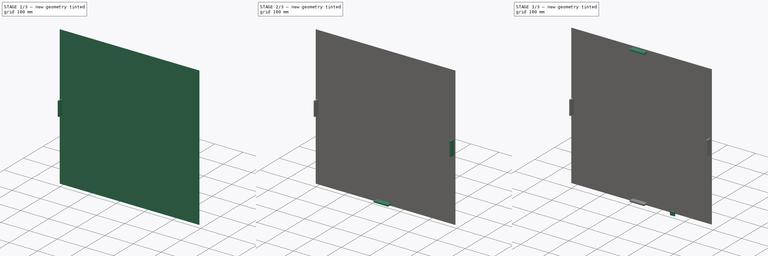
[diagram: build sequence overview — one tinted view per stage of 3, left to right]
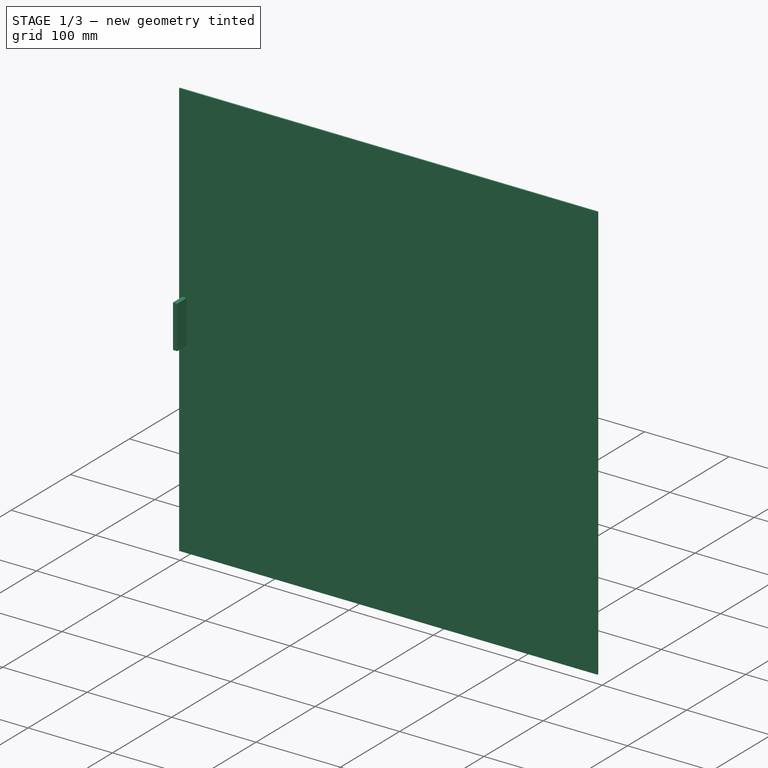
[diagram: stage 1 of 3 — iso view after this stage's code; geometry added in this stage tinted green]
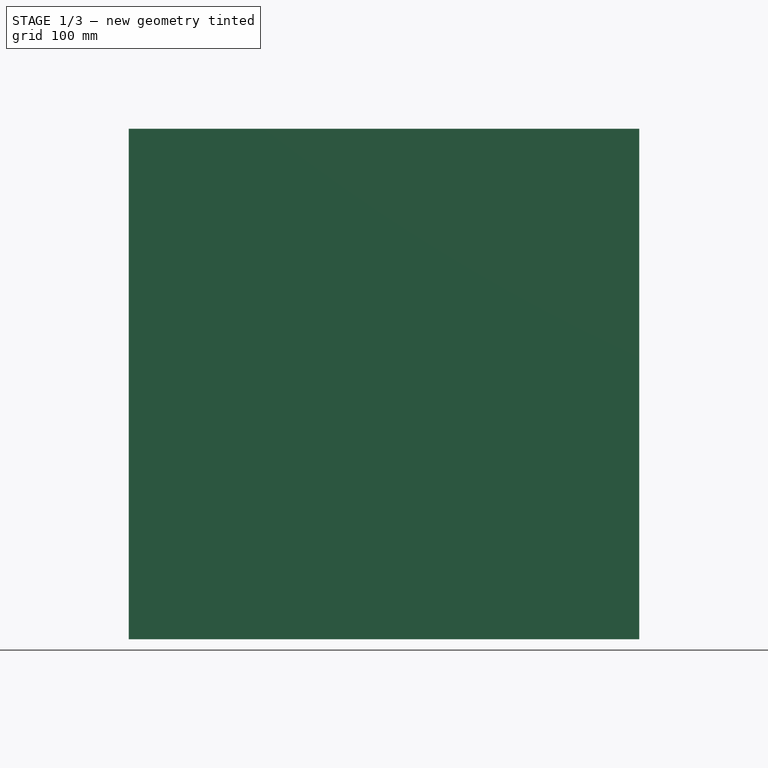
[diagram: stage 1 of 3 — front view after this stage's code; geometry added in this stage tinted green]
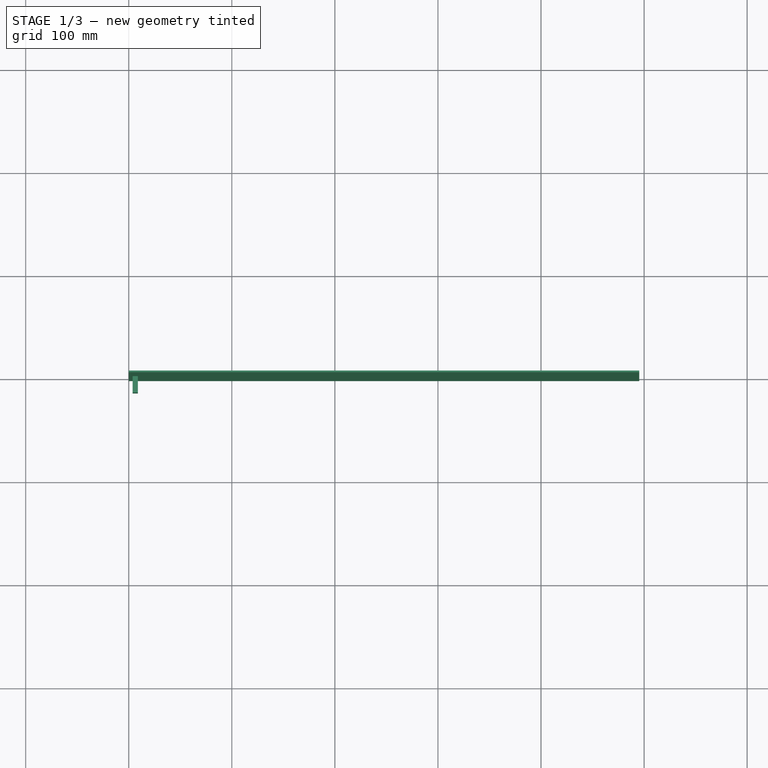
[diagram: stage 1 of 3 — top view after this stage's code; geometry added in this stage tinted green]
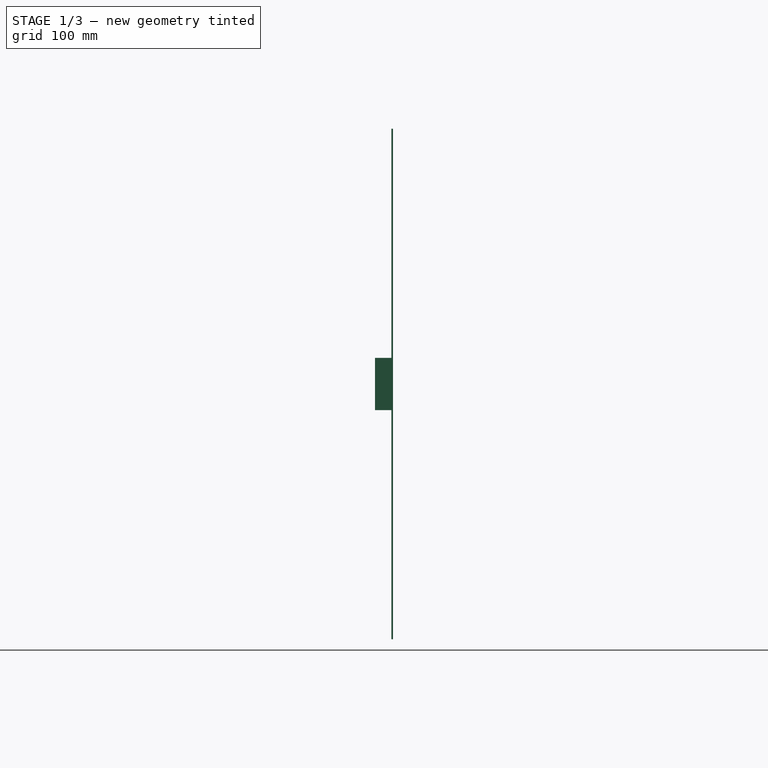
[diagram: stage 1 of 3 — right view after this stage's code; geometry added in this stage tinted green]
FCSTD DOCUMENT  (FreeCAD 0.19R24291 (Git))
Label: circboard
License: All rights reserved
LicenseURL: http://en.wikipedia.org/wiki/All_rights_reserved
objects: PartDesign::AdditiveBox×5, Sketcher::SketchObject×1, PartDesign::Pad×1, PartDesign::Body×1, App::Part×1
note: 14 computed .brp shape members not serialized (recipe doc carries the construction recipe); baked Part::Feature solids carry a one-line shape summary decoded from their .brp

FEATURE [Sketcher::SketchObject] Sketch
  FullyConstrained = false
  MapMode = 5
  Placement = pos=(0,0,0) rot=(1,0,0;1.5708rad)
  Support = -> [XZ_Plane001]
  sketch-geometry (4):
    g0: LineSegment StartX=0 StartY=0 StartZ=0 EndX=495.3 EndY=0 EndZ=0
    g1: LineSegment StartX=495.3 StartY=0 StartZ=0 EndX=495.3 EndY=495.3 EndZ=0
    g2: LineSegment StartX=495.3 StartY=495.3 StartZ=0 EndX=0 EndY=495.3 EndZ=0
    g3: LineSegment StartX=0 StartY=495.3 StartZ=0 EndX=0 EndY=0 EndZ=0
  constraints (8):
    c: Coincident(g0,g-1)
    c: Horizontal(g0)
    c: Coincident(g1,g0)
    c: Vertical(g1)
    c: Coincident(g2,g1)
    c: Horizontal(g2)
    c: Coincident(g3,g0)
    c: Vertical(g3)
FEATURE [PartDesign::Pad] Pad
  Direction = (1,1,1)
  Length = 1.5875
  Length2 = 99.9998
  Placement = pos=(0,0,0) rot=(1,0,0;1.5708rad)
  Profile = -> Sketch
  Refine = true
  Type = 0
FEATURE [PartDesign::AdditiveBox] Box
  AttacherType = Attacher::AttachEngine3D
  AttachmentOffset = pos=(3.81,222.25,0) rot=(0,0,1;0rad)
  BaseFeature = -> Pad
  Height = 15.875
  Length = 5.08
  MapMode = 5
  Placement = pos=(3.81,-1.5875,222.25) rot=(1,0,0;1.5708rad)
  Refine = true
  Support = -> [Pad]
  Width = 50.8
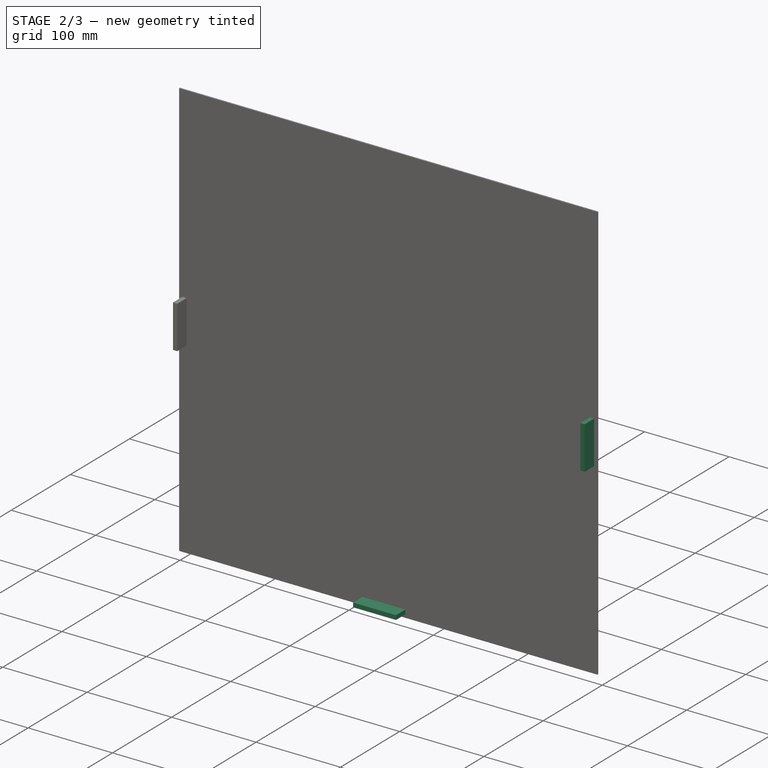
[diagram: stage 2 of 3 — iso view after this stage's code; geometry added in this stage tinted green]
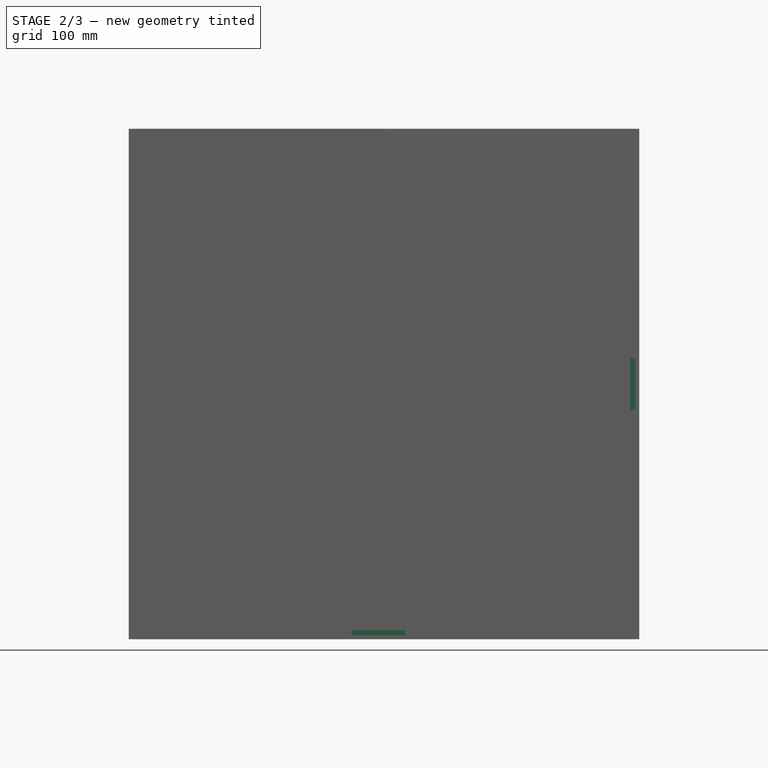
[diagram: stage 2 of 3 — front view after this stage's code; geometry added in this stage tinted green]
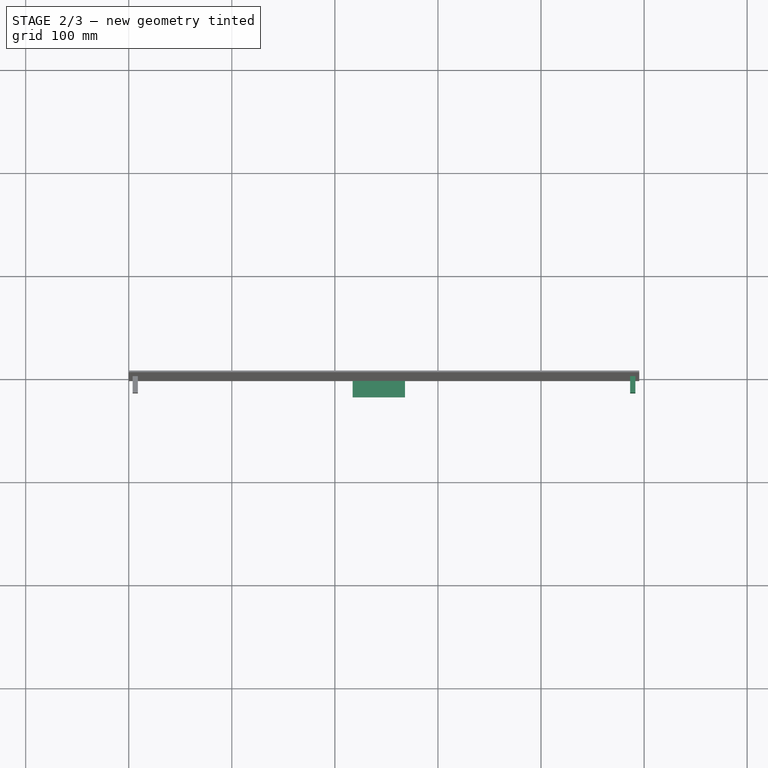
[diagram: stage 2 of 3 — top view after this stage's code; geometry added in this stage tinted green]
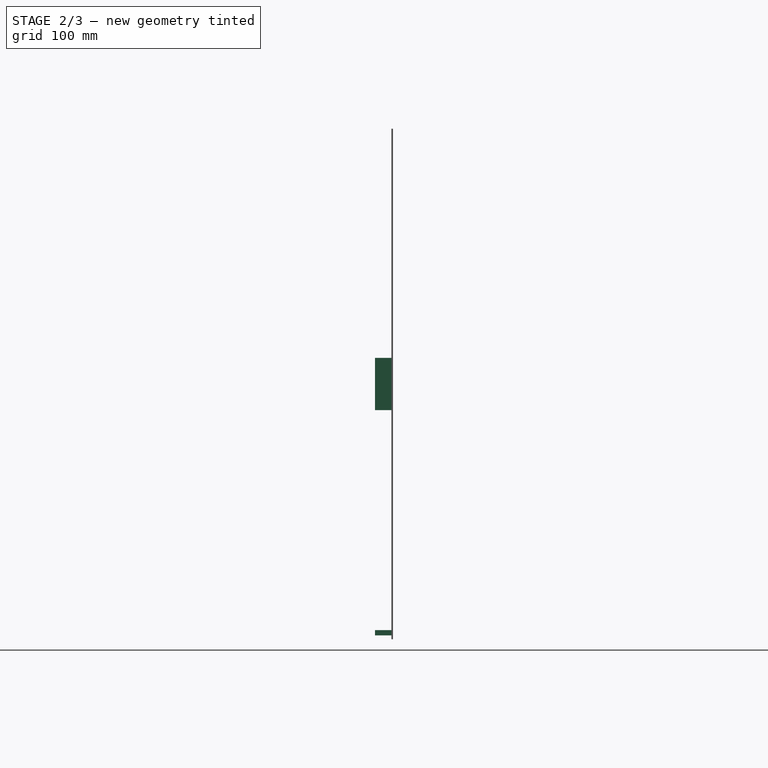
[diagram: stage 2 of 3 — right view after this stage's code; geometry added in this stage tinted green]
FEATURE [PartDesign::AdditiveBox] Box001
  AttacherType = Attacher::AttachEngine3D
  AttachmentOffset = pos=(482.6,0,0) rot=(0,0,1;0rad)
  BaseFeature = -> Box
  Height = 15.875
  Length = 5.08
  MapMode = 5
  Placement = pos=(486.41,-1.5875,222.25) rot=(1,0,0;1.5708rad)
  Refine = true
  Support = -> [Box]
  Width = 50.8
FEATURE [PartDesign::AdditiveBox] Box002
  AttacherType = Attacher::AttachEngine3D
  AttachmentOffset = pos=(-269.24,-218.44,0) rot=(0,0,1;0rad)
  BaseFeature = -> Box001
  Height = 15.875
  Length = 50.8
  MapMode = 5
  Placement = pos=(217.17,-1.5875,3.81) rot=(1,0,0;1.5708rad)
  Refine = true
  Support = -> [Box001]
  Width = 5.08
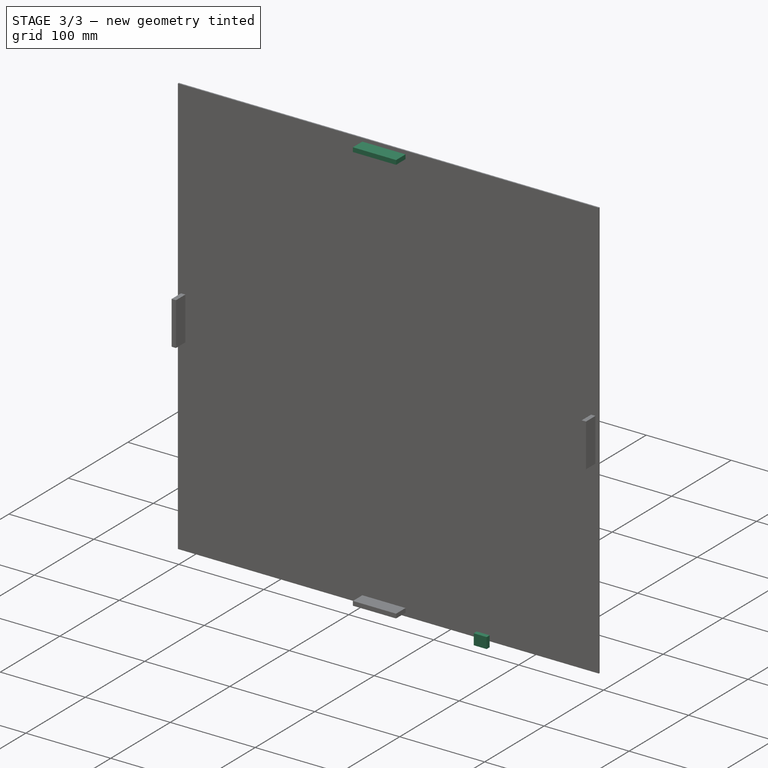
[diagram: stage 3 of 3 — iso view after this stage's code; geometry added in this stage tinted green]
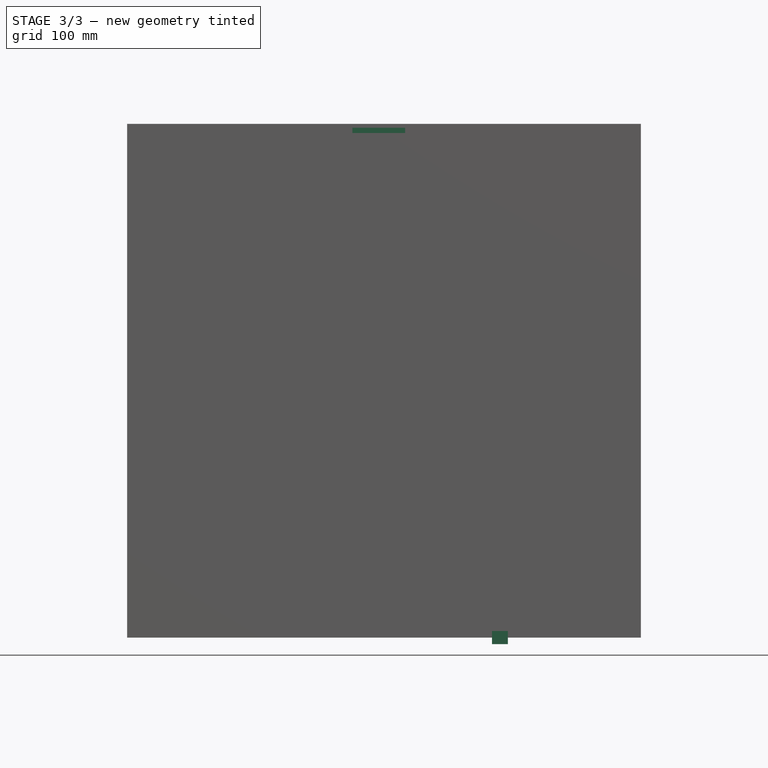
[diagram: stage 3 of 3 — front view after this stage's code; geometry added in this stage tinted green]
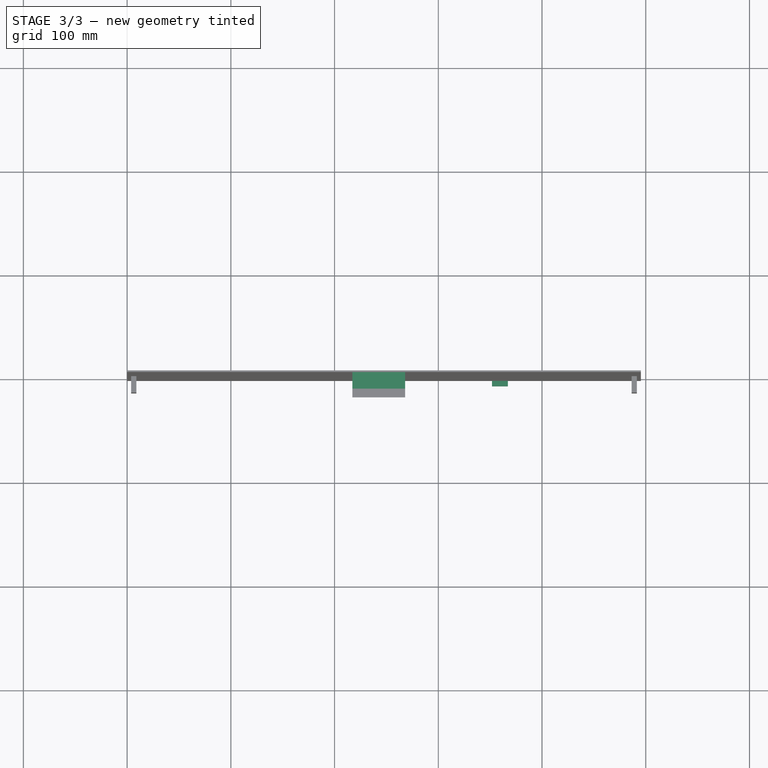
[diagram: stage 3 of 3 — top view after this stage's code; geometry added in this stage tinted green]
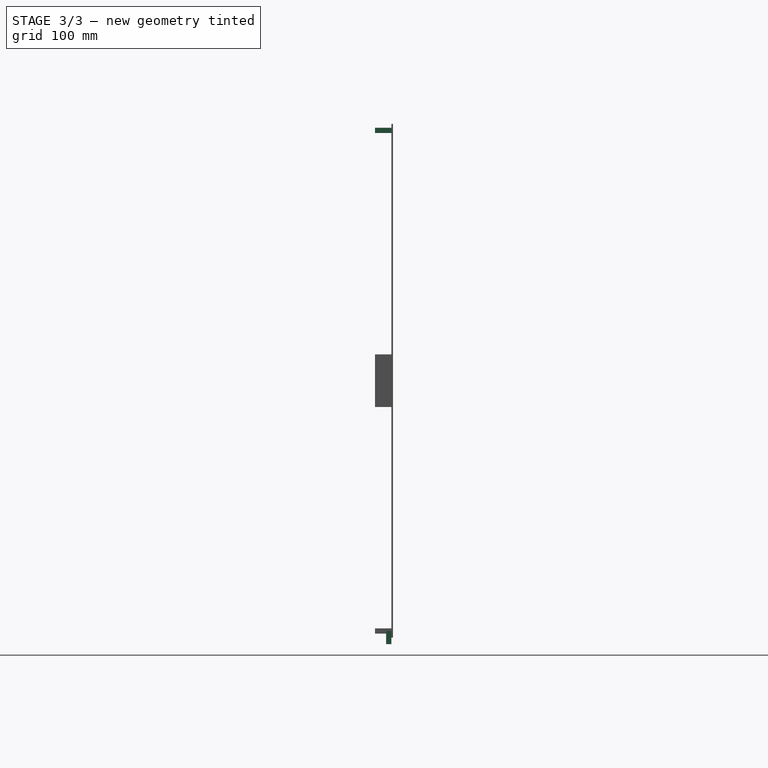
[diagram: stage 3 of 3 — right view after this stage's code; geometry added in this stage tinted green]
FEATURE [PartDesign::AdditiveBox] Box003
  AttacherType = Attacher::AttachEngine3D
  AttachmentOffset = pos=(0,482.6,0) rot=(0,0,1;0rad)
  BaseFeature = -> Box002
  Height = 15.875
  Length = 50.8
  MapMode = 5
  Placement = pos=(217.17,-1.5875,486.41) rot=(1,0,0;1.5708rad)
  Refine = true
  Support = -> [Box002]
  Width = 5.08
FEATURE [PartDesign::AdditiveBox] Box004
  AttacherType = Attacher::AttachEngine3D
  AttachmentOffset = pos=(134.62,-492.76,0) rot=(0,0,1;0rad)
  BaseFeature = -> Box003
  Height = 5.08
  Length = 15.24
  MapMode = 5
  Placement = pos=(351.79,-1.5875,-6.35) rot=(1,0,0;1.5708rad)
  Refine = true
  Support = -> [Box003]
  Width = 12.7
FEATURE [PartDesign::Body] Body  label="circ_body"
  Group = -> [Sketch,Pad,Box,Box001,Box002,Box003,Box004]
  Origin = -> Origin001
  Tip = -> Box004
FEATURE [App::Part] Part  label="circ_part"
  Group = -> [Body]
  Origin = -> Origin
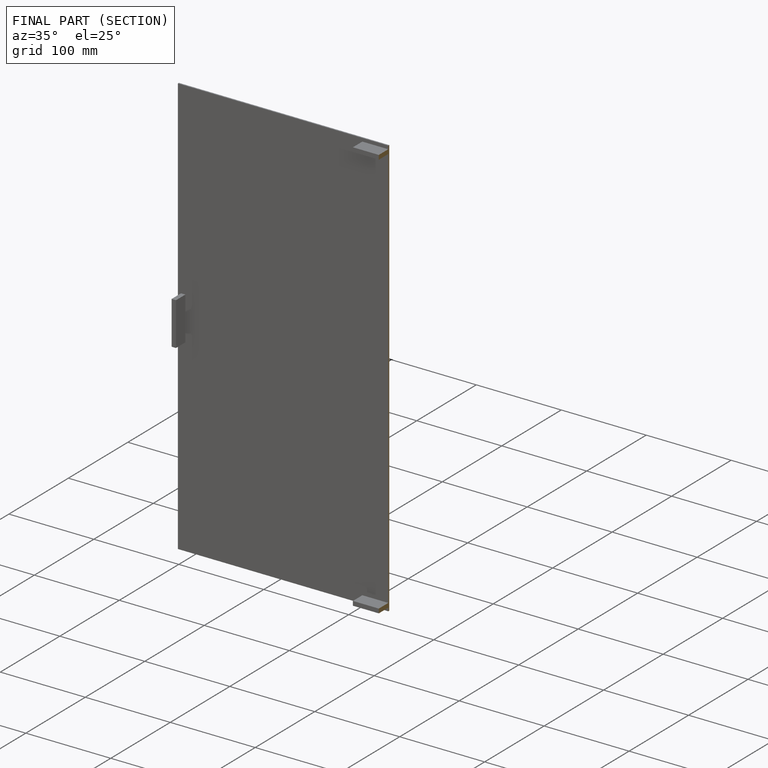
[diagram: finished part — half-section view (interior)]
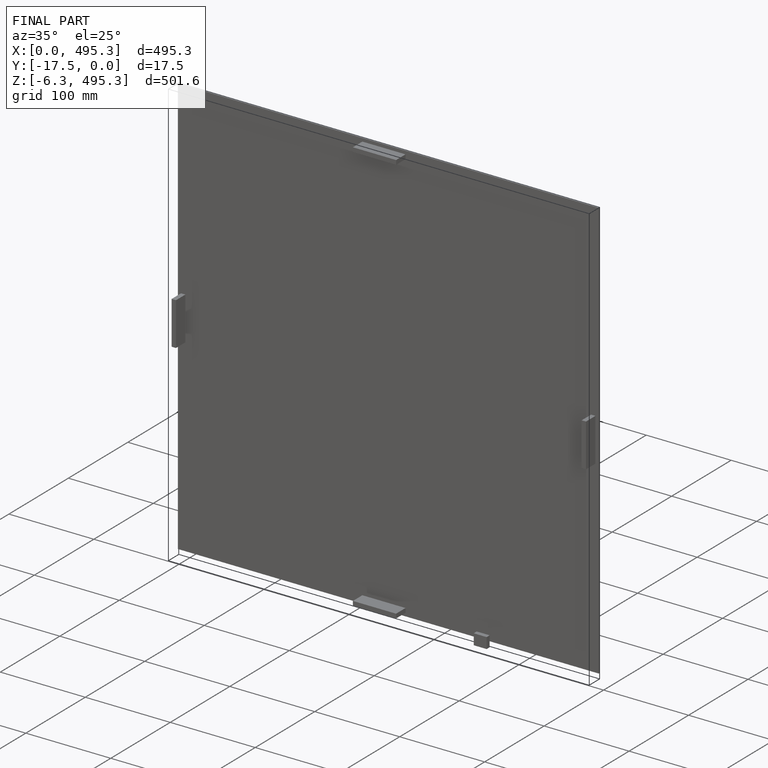
[diagram: finished part — iso view with bounding-box wireframe]
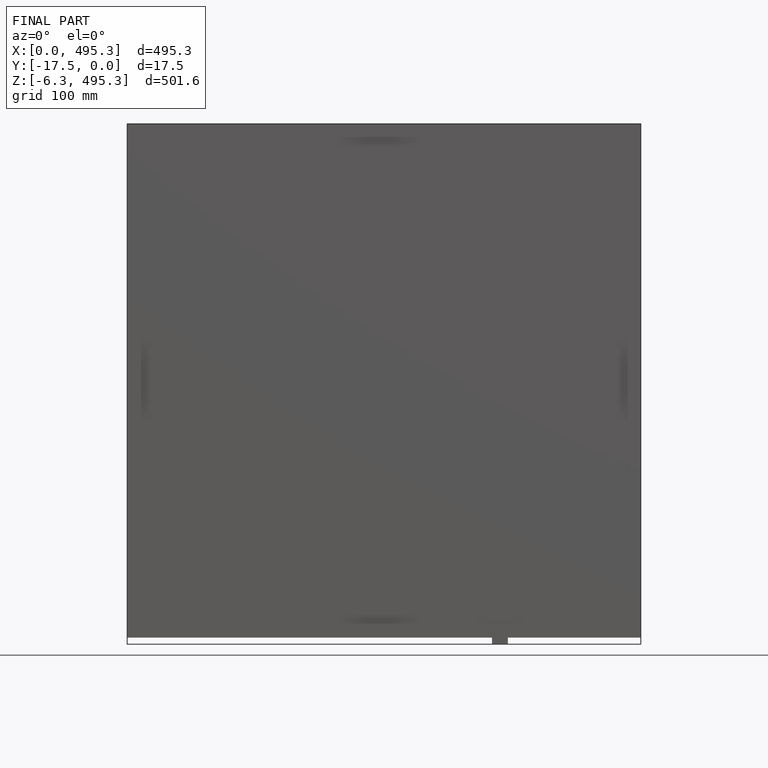
[diagram: finished part — front view with bounding-box wireframe]
